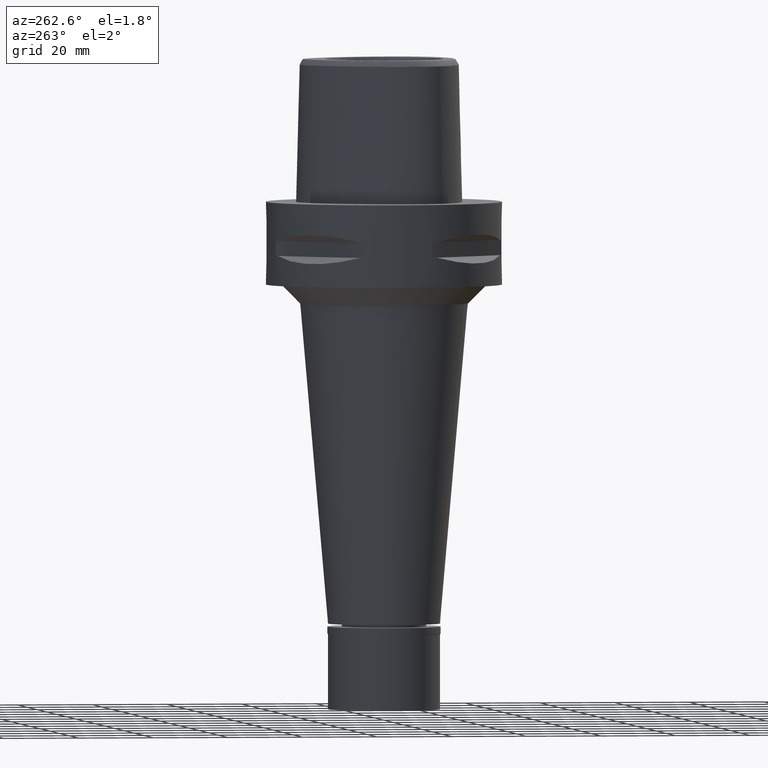
[diagram: clean part render]
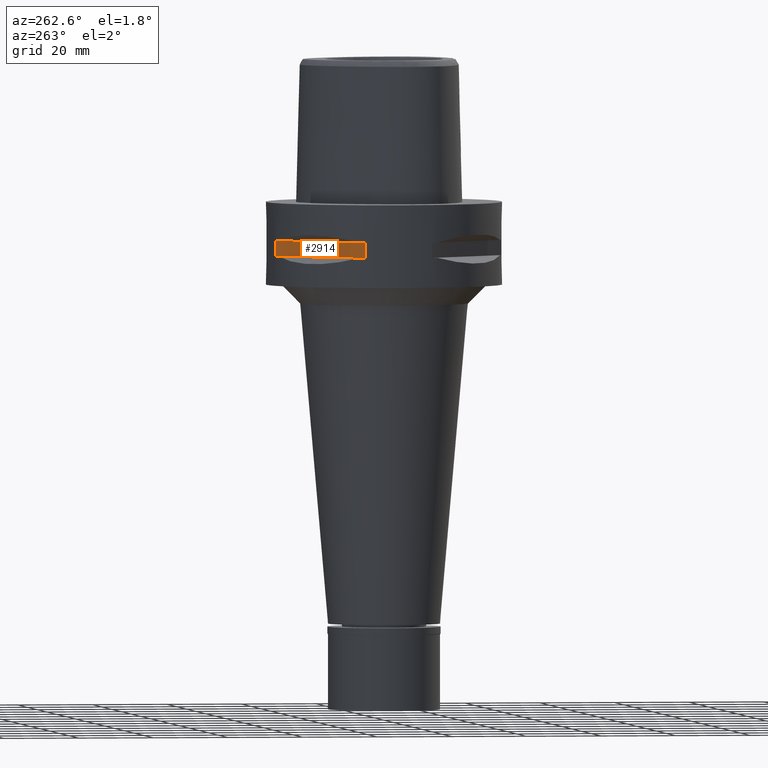
[diagram: same view with one face highlighted and labeled with its STEP entity id]
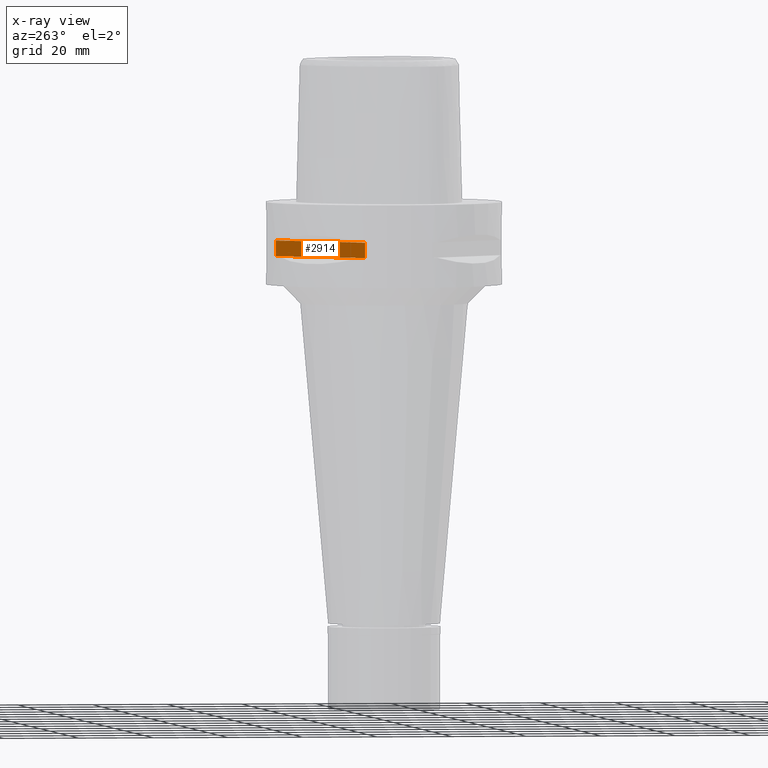
[diagram: x-ray of the same camera — body ghosted, the highlighted face saturated]
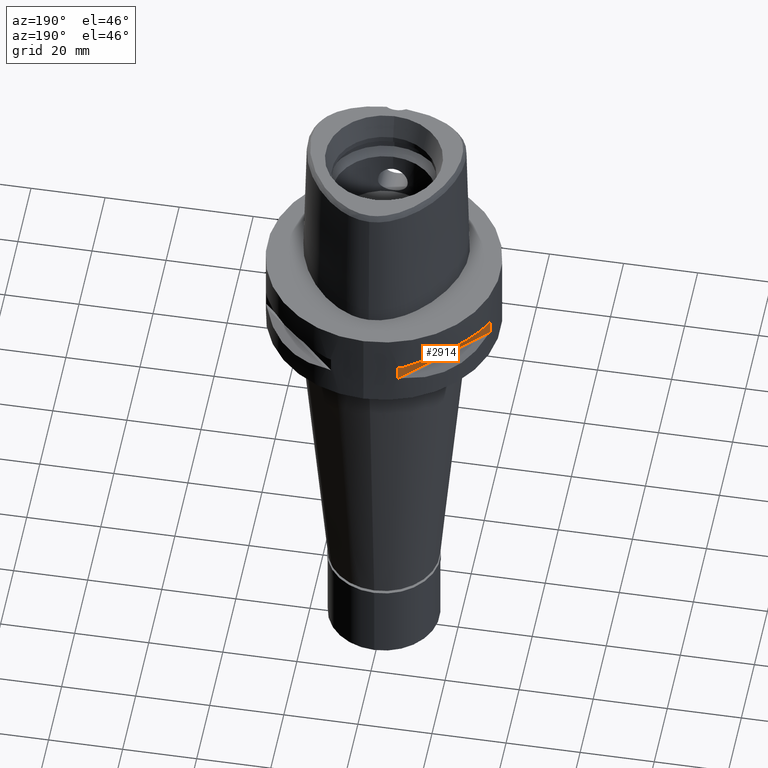
[diagram: same view with one face highlighted and labeled with its STEP entity id]
A machine part, auxiliary view. The second image highlights one B-rep face of the part: STEP entity #2914.
The next image is the same camera in x-ray: the body ghosted, the highlighted face saturated — about 0% of this face is hidden behind the body in this view.
A second angle (auxiliary view) of the same face is appended — the face is thin or edge-on in the first view.
In plain terms, the highlighted planar face has unit normal (0.7071, -0.7071, 0).
Its self-contained STEP definition (entity closure, byte-faithful):
#10 = ORIENTED_EDGE ( 'NONE', *, *, #771, .T. ) ;
#62 = CARTESIAN_POINT ( 'NONE',  ( -8.981198972017999438, 30.19251670572000279, -14.05000000000000071 ) ) ;
#81 = LINE ( 'NONE', #1276, #2207 ) ;
#225 = CARTESIAN_POINT ( 'NONE',  ( -8.981198972019999616, 30.19251670572000279, -9.950000000000001066 ) ) ;
#268 = EDGE_CURVE ( 'NONE', #939, #4104, #4430, .T. ) ;
#289 = EDGE_CURVE ( 'NONE', #2213, #2901, #1292, .T. ) ;
#739 = VECTOR ( 'NONE', #3476, 1000.000000000000114 ) ;
#771 = EDGE_CURVE ( 'NONE', #4104, #2213, #81, .T. ) ;
#939 = VERTEX_POINT ( 'NONE', #225 ) ;
#1093 = AXIS2_PLACEMENT_3D ( 'NONE', #3558, #3146, #1298 ) ;
#1162 = CARTESIAN_POINT ( 'NONE',  ( -8.981198972017999438, 30.19251670572000279, -9.950000000000001066 ) ) ;
#1199 = EDGE_CURVE ( 'NONE', #939, #2901, #3117, .T. ) ;
#1251 = FACE_OUTER_BOUND ( 'NONE', #3150, .T. ) ;
#1273 = CARTESIAN_POINT ( 'NONE',  ( -30.19251670572000279, 8.981198972017999438, -9.950000000000001066 ) ) ;
#1276 = CARTESIAN_POINT ( 'NONE',  ( -8.981198972017999438, 30.19251670572000279, -14.05000000000000071 ) ) ;
#1292 = LINE ( 'NONE', #3601, #1802 ) ;
#1298 = DIRECTION ( 'NONE',  ( 0.0000000000000000000, 0.0000000000000000000, -1.000000000000000000 ) ) ;
#1802 = VECTOR ( 'NONE', #2476, 1000.000000000000000 ) ;
#2002 = PLANE ( 'NONE',  #1093 ) ;
#2207 = VECTOR ( 'NONE', #3583, 1000.000000000000114 ) ;
#2213 = VERTEX_POINT ( 'NONE', #2725 ) ;
#2220 = ORIENTED_EDGE ( 'NONE', *, *, #268, .T. ) ;
#2476 = DIRECTION ( 'NONE',  ( 0.0000000000000000000, 0.0000000000000000000, 1.000000000000000000 ) ) ;
#2678 = ORIENTED_EDGE ( 'NONE', *, *, #1199, .F. ) ;
#2725 = CARTESIAN_POINT ( 'NONE',  ( -30.19251670572000279, 8.981198972019999616, -14.05000000000000071 ) ) ;
#2824 = CARTESIAN_POINT ( 'NONE',  ( -8.981198972017999438, 30.19251670572000279, -9.950000000000001066 ) ) ;
#2901 = VERTEX_POINT ( 'NONE', #1273 ) ;
#2914 = ADVANCED_FACE ( 'NONE', ( #1251 ), #2002, .F. ) ;
#3117 = LINE ( 'NONE', #1162, #739 ) ;
#3146 = DIRECTION ( 'NONE',  ( 0.7071067811865475727, -0.7071067811865475727, 0.0000000000000000000 ) ) ;
#3150 = EDGE_LOOP ( 'NONE', ( #2678, #2220, #10, #4253 ) ) ;
#3476 = DIRECTION ( 'NONE',  ( -0.7071067811865474617, -0.7071067811865474617, 0.0000000000000000000 ) ) ;
#3558 = CARTESIAN_POINT ( 'NONE',  ( -33.72899346260000186, 5.444722215136000187, -9.950000000000001066 ) ) ;
#3583 = DIRECTION ( 'NONE',  ( -0.7071067811865474617, -0.7071067811865474617, 0.0000000000000000000 ) ) ;
#3601 = CARTESIAN_POINT ( 'NONE',  ( -30.19251670572000279, 8.981198972017999438, -14.05000000000000071 ) ) ;
#4104 = VERTEX_POINT ( 'NONE', #62 ) ;
#4253 = ORIENTED_EDGE ( 'NONE', *, *, #289, .T. ) ;
#4430 = LINE ( 'NONE', #2824, #4513 ) ;
#4513 = VECTOR ( 'NONE', #4813, 1000.000000000000000 ) ;
#4813 = DIRECTION ( 'NONE',  ( 0.0000000000000000000, 0.0000000000000000000, -1.000000000000000000 ) ) ;